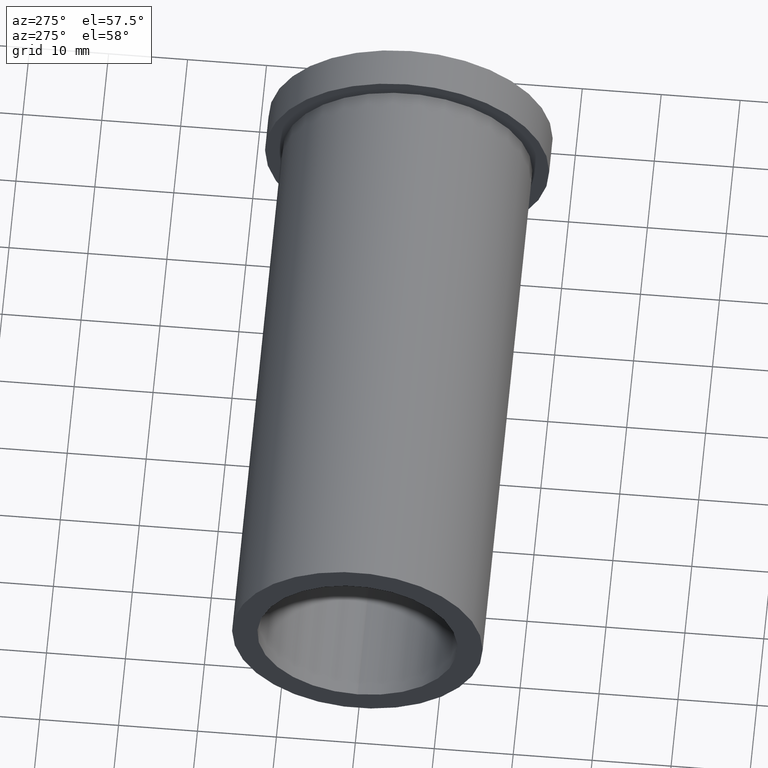
[diagram: clean part render]
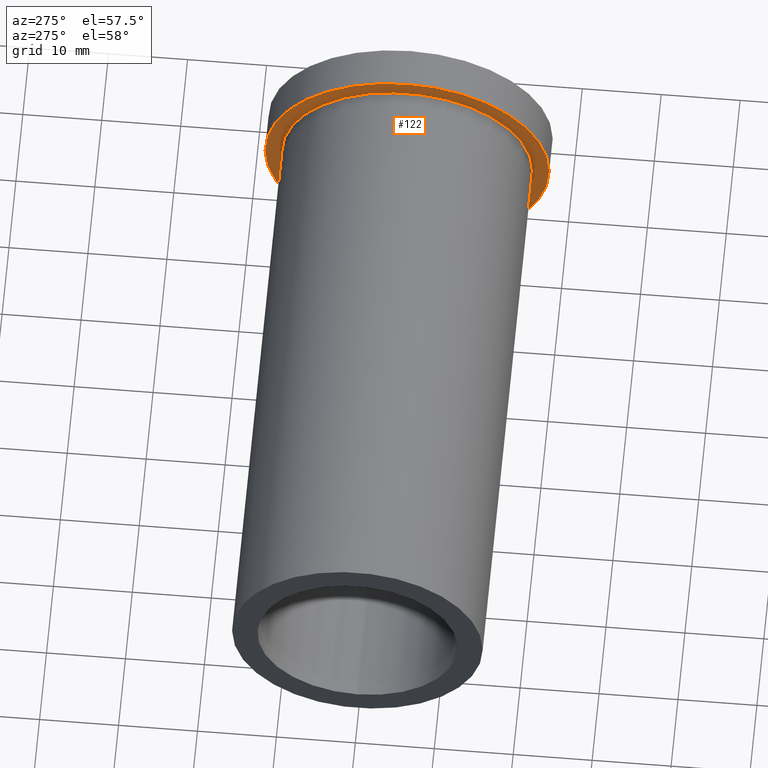
[diagram: same view with one face highlighted and labeled with its STEP entity id]
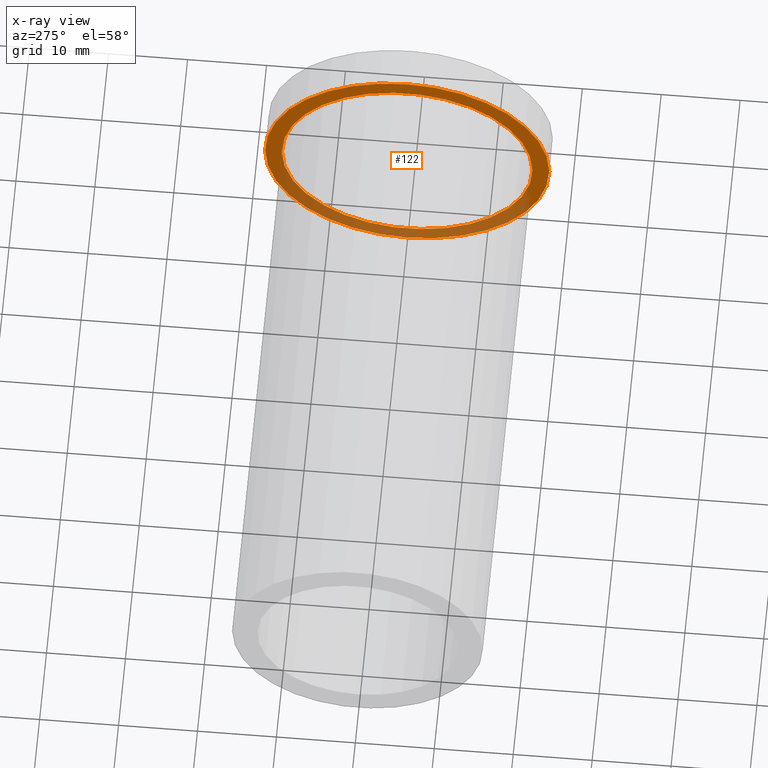
[diagram: x-ray of the same camera — body ghosted, the highlighted face saturated]
A machine part, auxiliary view. The second image highlights one B-rep face of the part: STEP entity #122.
The next image is the same camera in x-ray: the body ghosted, the highlighted face saturated — about 38% of this face is hidden behind the body in this view.
In plain terms, the highlighted planar face has unit normal (-1, 0, 0).
Its self-contained STEP definition (entity closure, byte-faithful):
#17=FACE_BOUND('',#40,.T.);
#20=PLANE('',#162);
#29=FACE_OUTER_BOUND('',#39,.T.);
#39=EDGE_LOOP('',(#109));
#40=EDGE_LOOP('',(#110));
#57=CIRCLE('',#156,18.);
#59=CIRCLE('',#161,15.8750000000001);
#66=VERTEX_POINT('',#224);
#68=VERTEX_POINT('',#232);
#79=EDGE_CURVE('',#66,#66,#57,.T.);
#81=EDGE_CURVE('',#68,#68,#59,.T.);
#109=ORIENTED_EDGE('',*,*,#79,.F.);
#110=ORIENTED_EDGE('',*,*,#81,.T.);
#122=ADVANCED_FACE('',(#29,#17),#20,.T.);
#156=AXIS2_PLACEMENT_3D('',#226,#189,#190);
#161=AXIS2_PLACEMENT_3D('',#233,#199,#200);
#162=AXIS2_PLACEMENT_3D('',#235,#202,#203);
#189=DIRECTION('center_axis',(1.,0.,0.));
#190=DIRECTION('ref_axis',(0.,0.,-1.));
#199=DIRECTION('center_axis',(1.,0.,0.));
#200=DIRECTION('ref_axis',(0.,0.,-1.));
#202=DIRECTION('center_axis',(-1.,0.,0.));
#203=DIRECTION('ref_axis',(0.,0.,1.));
#224=CARTESIAN_POINT('',(-4.99999999999999,-18.,-2.20436423846524E-15));
#226=CARTESIAN_POINT('Origin',(-4.99999999999999,0.,0.));
#232=CARTESIAN_POINT('',(-5.,-15.8750000000001,-1.94412679364643E-15));
#233=CARTESIAN_POINT('Origin',(-5.,0.,0.));
#235=CARTESIAN_POINT('Origin',(-4.99999999999999,18.,0.));